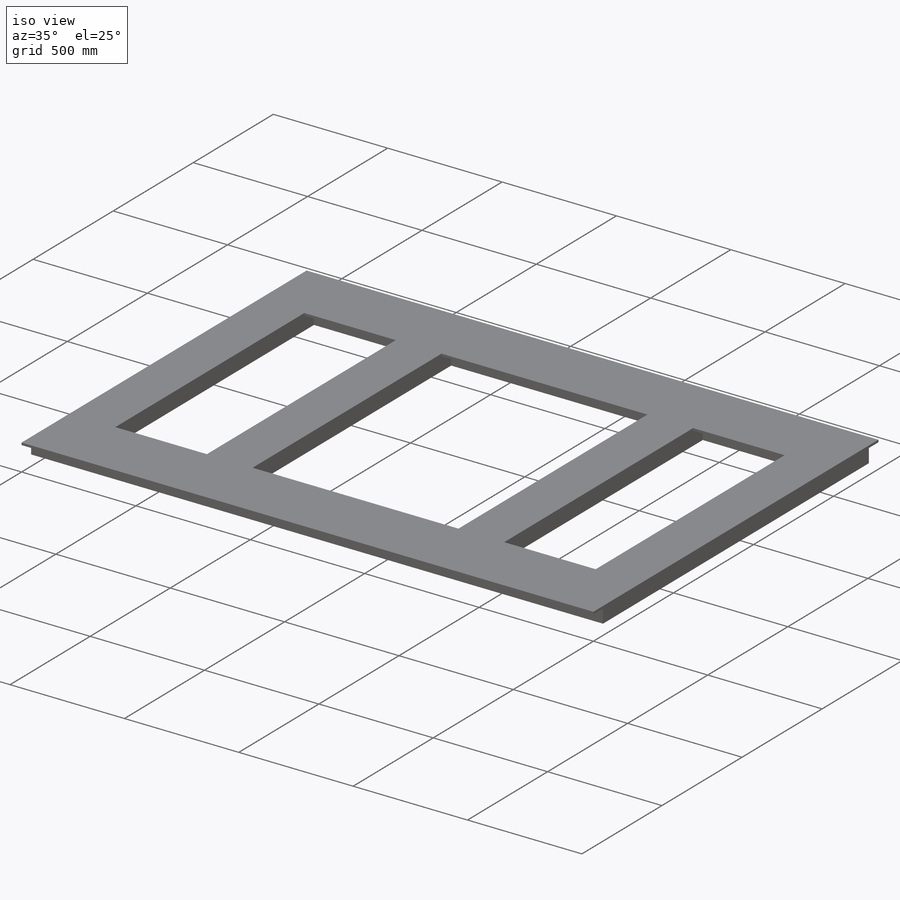
[diagram: iso view]
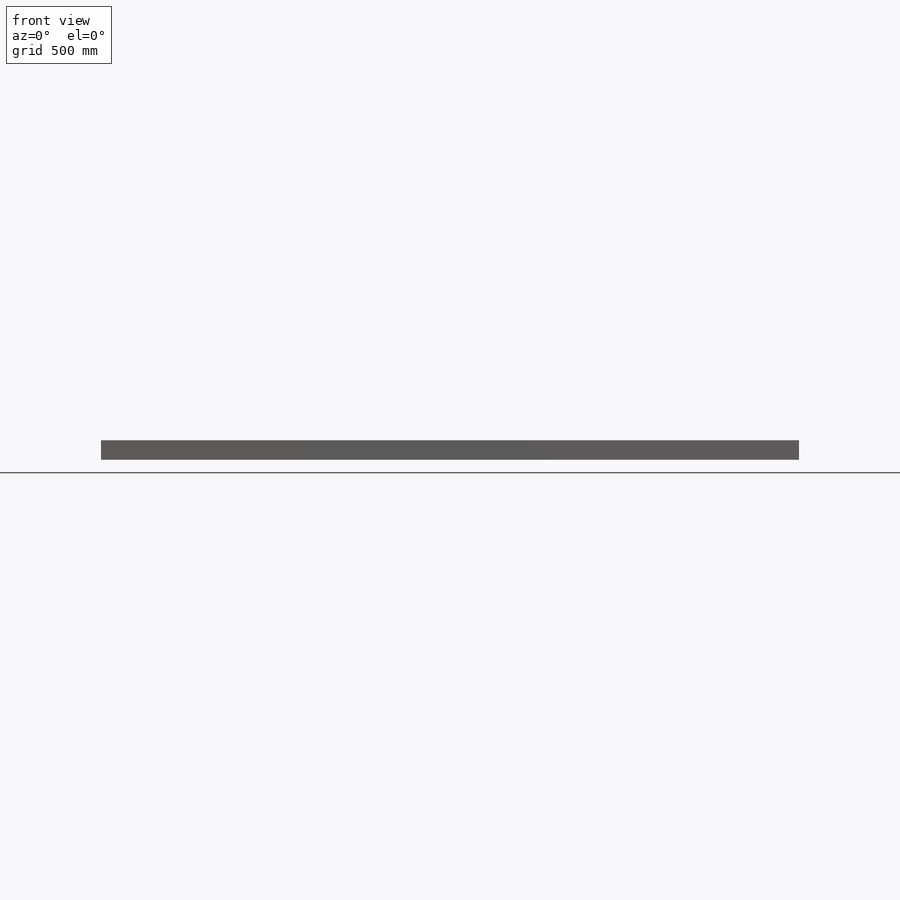
[diagram: front view]
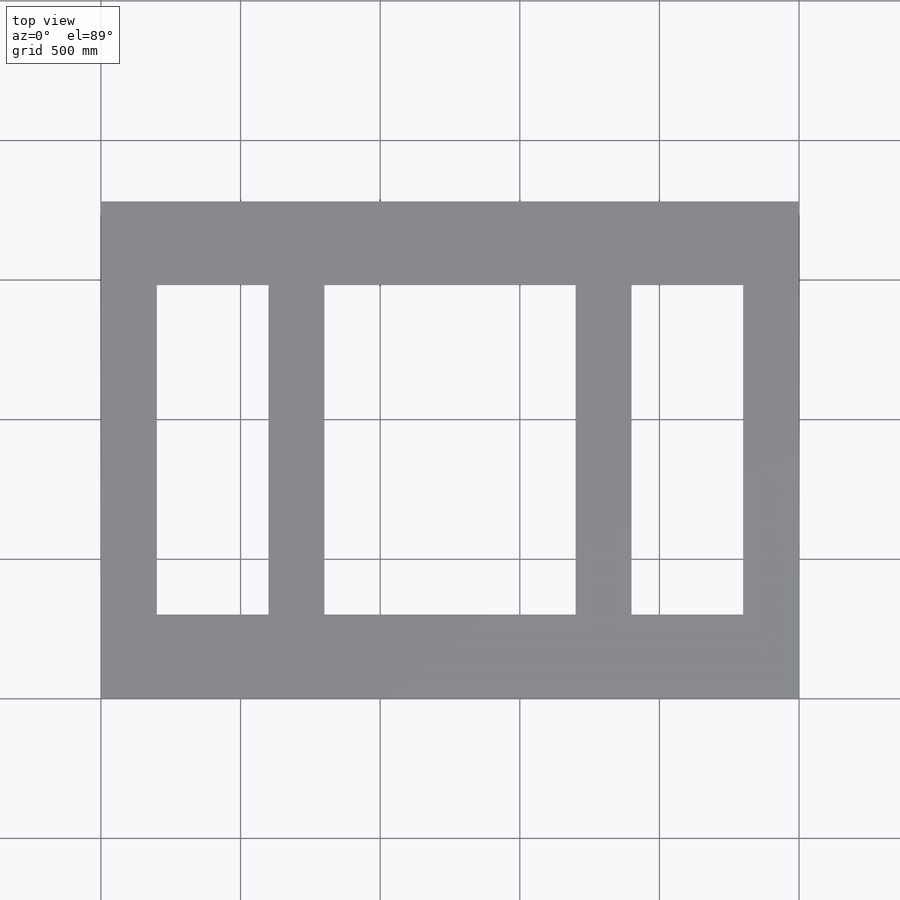
[diagram: top view]
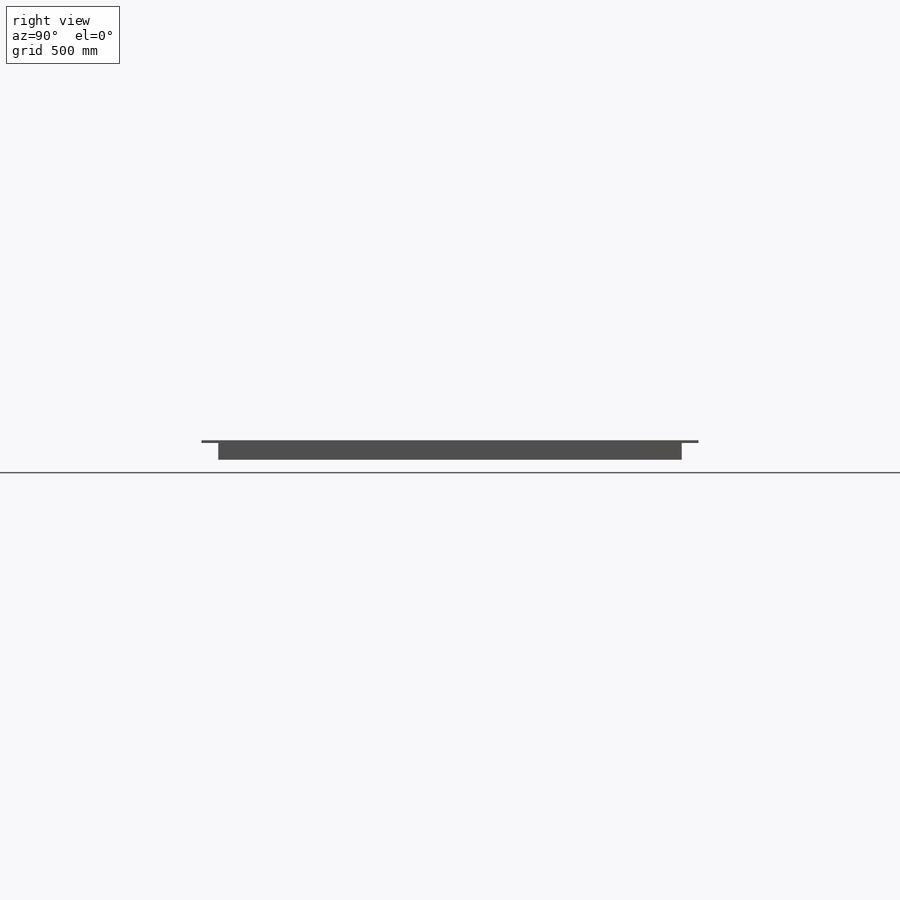
[diagram: right view]
SOLIDWORKS PART (.sldprt)
format: sldprt  version: not decoded by parser v0  size: 400,896 bytes
history: native  units: mm
features: sketch x4, extrude x4, material x1, mirror x1 (+13 scaffold rows collapsed)
feature tree (23):
  scaffold x13  (default folders/planes/origin — collapsed)
  material  "6061 Alloy"
  sketch  "Sketch1"  dims[D1=300.0mm D2=2500.0mm]
  extrude  "Extrude1"  Depth=10mm
  sketch  "Sketch2"  dims[D1=60.0mm D2=20.0mm D3=60.0mm D4=20.0mm]
  extrude  "Extrude2"  Depth=60mm
  sketch  "Sketch3"  dims[D1=200.0mm D2=200.0mm D3=200.0mm D4=200.0mm D5=400.0mm D6=400.0mm D7=590.0mm D8=590.0mm D9=590.0mm D10=590.0mm]
  extrude  "Extrude3"  Depth=10mm
  sketch  "Sketch5"  dims[D1=20.0mm D2=20.0mm D3=20.0mm D4=20.0mm D5=20.0mm D6=20.0mm D7=20.0mm D8=20.0mm]
  extrude  "Extrude7"  Depth=60mm
  mirror  "Mirror2"
decode coverage: 8 of 9 modeling features carry decoded parameters
note: suppression state not decoded; provenance and decode notes live in map.json
